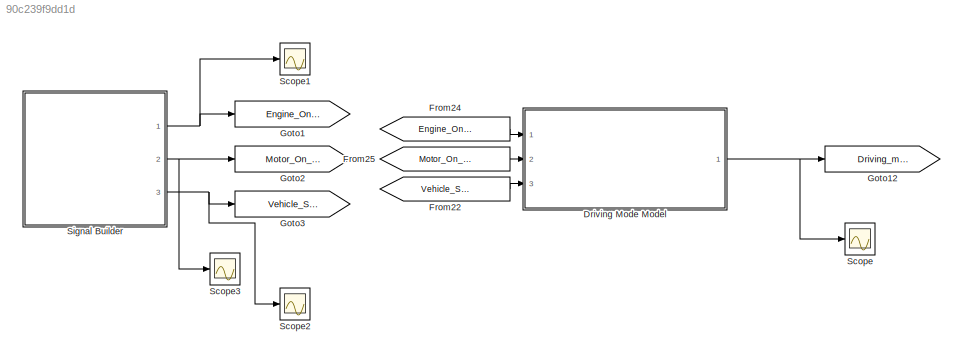
MODEL slx_90c239f9dd1d
KIND model
CONFIG AbsTol = auto
CONFIG FixedStep = auto
CONFIG MaxStep = auto
CONFIG MinStep = auto
CONFIG RelTol = 1e-3
CONFIG SampleTimeConstraint = Unconstrained
CONFIG Solver = ode45
CONFIG SolverMode = Auto
CONFIG SolverName = ode45
CONFIG StartTime = 0.0
CONFIG StopTime = 10.0
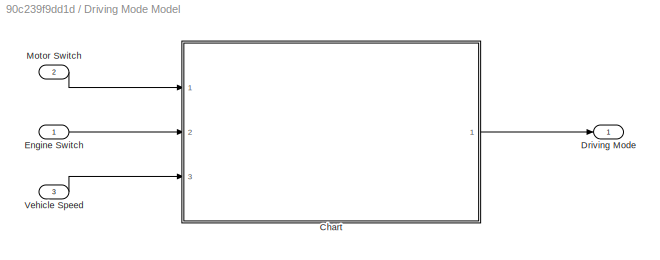
BLOCK [SubSystem] Driving Mode Model
  Ports = [3, 1]
  RequestExecContextInheritance = off
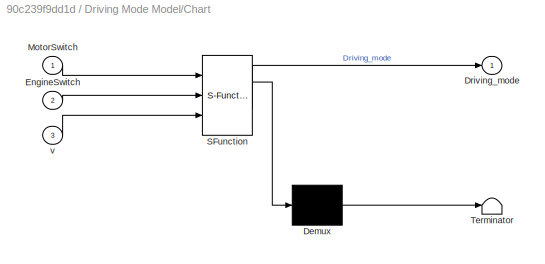
BLOCK [SubSystem] Driving Mode Model/Chart
  ErrorFcn = Stateflow.Translate.translate
  PermitHierarchicalResolution = ExplicitOnly
  Ports = [3, 1]
  RequestExecContextInheritance = off
  SFBlockType = Chart
  TreatAsAtomicUnit = on
BLOCK [Demux] Driving Mode Model/Chart/ Demux 
  Outputs = 1
  Ports = [1, 1]
BLOCK [S-Function] Driving Mode Model/Chart/ SFunction 
  EnableBusSupport = on
  FunctionName = sf_sfun
  PortCounts = [3 2]
  Ports = [3, 2]
  Tag = Stateflow S-Function validate_driving_mode 3
BLOCK [Terminator] Driving Mode Model/Chart/ Terminator 
BLOCK [Outport] Driving Mode Model/Chart/Driving_mode
  IconDisplay = Port number
BLOCK [Inport] Driving Mode Model/Chart/EngineSwitch
  IconDisplay = Port number
  Port = 2
BLOCK [Inport] Driving Mode Model/Chart/MotorSwitch
  IconDisplay = Port number
BLOCK [Inport] Driving Mode Model/Chart/v
  IconDisplay = Port number
  Port = 3
BLOCK [Outport] Driving Mode Model/Driving Mode
  IconDisplay = Port number
BLOCK [Inport] Driving Mode Model/Engine Switch
  IconDisplay = Port number
BLOCK [Inport] Driving Mode Model/Motor Switch
  IconDisplay = Port number
  Port = 2
BLOCK [Inport] Driving Mode Model/Vehicle Speed
  IconDisplay = Port number
  Port = 3
BLOCK [From] From22
  GotoTag = Vehicle_Speed
BLOCK [From] From24
  GotoTag = Engine_On_Switch
BLOCK [From] From25
  GotoTag = Motor_On_Switch
BLOCK [Goto] Goto1
  GotoTag = Engine_On_Switch
BLOCK [Goto] Goto12
  GotoTag = Driving_mode
BLOCK [Goto] Goto2
  GotoTag = Motor_On_Switch
BLOCK [Goto] Goto3
  GotoTag = Vehicle_Speed
BLOCK [Scope] Scope
  Floating = off
  NumInputPorts = 1
  Ports = [1]
BLOCK [Scope] Scope1
  Floating = off
  NumInputPorts = 1
  Ports = [1]
  SaveName = ScopeData1
BLOCK [Scope] Scope2
  Floating = off
  NumInputPorts = 1
  Ports = [1]
  SaveName = ScopeData2
BLOCK [Scope] Scope3
  Floating = off
  NumInputPorts = 1
  Ports = [1]
  SaveName = ScopeData3
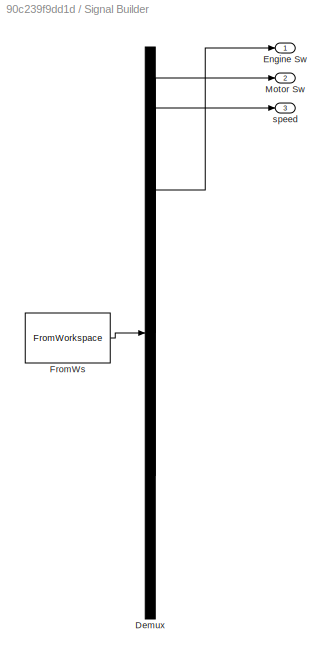
BLOCK [SubSystem] Signal Builder
  ClipboardFcn = sigbuilder_block('clipboard');
  CloseFcn = sigbuilder_block('close');
  ContinueFcn = sigbuilder_block('continue');
  CopyFcn = sigbuilder_block('copy');
  DeleteFcn = sigbuilder_block('delete');
  LoadFcn = sigbuilder_block('load');
  MaskHideContents = on
  ModelCloseFcn = sigbuilder_block('modelClose');
  NameChangeFcn = sigbuilder_block('namechange');
  OpenFcn = sigbuilder_block('open',[437.6 199.2 550.4 400 ]);
  PauseFcn = sigbuilder_block('pause');
  Ports = [0, 3]
  PreSaveFcn = sigbuilder_block('preSave');
  RequestExecContextInheritance = off
  StartFcn = sigbuilder_block('start');
  StopFcn = sigbuilder_block('stop');
  Tag = STV Subsys
BLOCK [Demux] Signal Builder/Demux
  Outputs = 3
  Ports = [1, 3]
  Tag = STV Demux
BLOCK [Outport] Signal Builder/Engine Sw
  IconDisplay = Port number
  Tag = STV Outport
BLOCK [FromWorkspace] Signal Builder/FromWs
  SampleTime = 0
  Tag = STV FromWs
  VariableName = tuvar
  ZeroCross = on
BLOCK [Outport] Signal Builder/Motor Sw
  IconDisplay = Port number
  Port = 2
  Tag = STV Outport
BLOCK [Outport] Signal Builder/speed
  IconDisplay = Port number
  Port = 3
  Tag = STV Outport
LINE Driving Mode Model/Chart:1 -> Driving Mode Model/Driving Mode:1
LINE Driving Mode Model/Engine Switch:1 -> Driving Mode Model/Chart:2
LINE Driving Mode Model/Motor Switch:1 -> Driving Mode Model/Chart:1
LINE Driving Mode Model/Vehicle Speed:1 -> Driving Mode Model/Chart:3
NET Driving Mode Model:1 -> Goto12:1, Scope:1
LINE From22:1 -> Driving Mode Model:3
LINE From24:1 -> Driving Mode Model:1
LINE From25:1 -> Driving Mode Model:2
NET Signal Builder:1 -> Goto1:1, Scope1:1
NET Signal Builder:2 -> Goto2:1, Scope3:1
NET Signal Builder:3 -> Goto3:1, Scope2:1
note: NET lines group one-source signal fan-out (src -> all destinations, sorted); 1:1 wires keep LINE
CHART Driving Mode Model/Chart states=3 transitions=7
  STATE_LABEL 'Electric_solo_mode\nentry:Driving_mode=1;\nduring:Driving_mode=1;\n'
  STATE_LABEL 'Blending_mode\nentry:Driving_mode=2;\nduring:Driving_mode=2;\n'
  STATE_LABEL 'Engine_Solo_mode\nentry:Driving_mode=3;\nduring: Driving_mode=3;'
